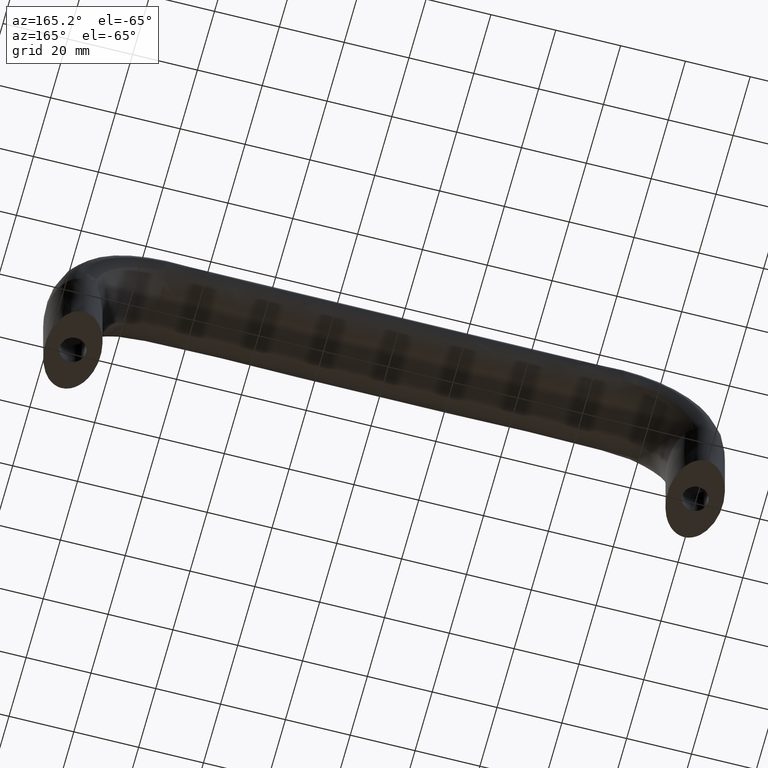
[diagram: clean part render]
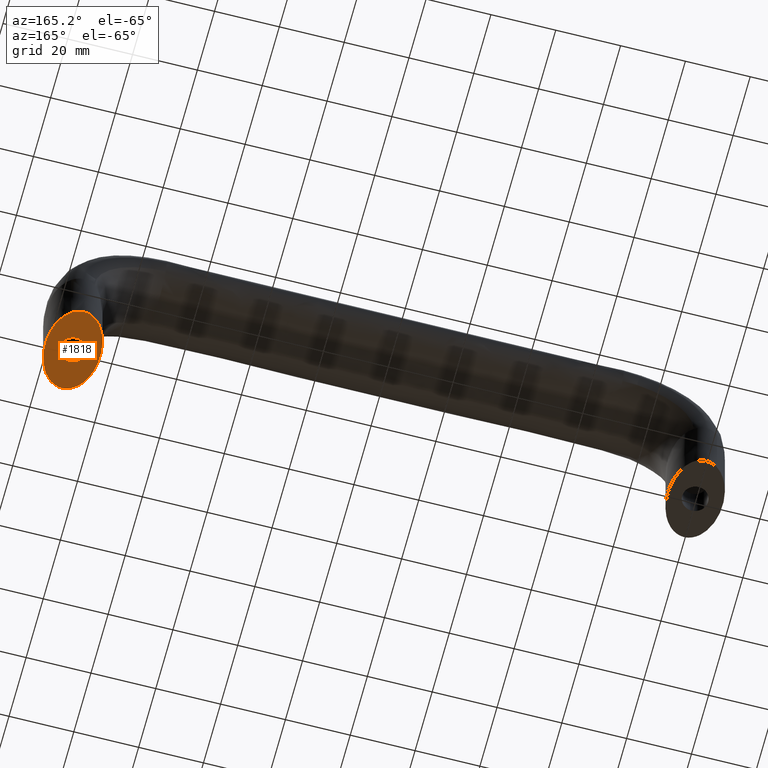
[diagram: same view with one face highlighted and labeled with its STEP entity id]
A machine part, auxiliary view. The second image highlights one B-rep face of the part: STEP entity #1818.
In plain terms, the highlighted face is a freeform B-spline surface patch.
Its self-contained STEP definition (entity closure, byte-faithful):
#271=CARTESIAN_POINT('',(192.472136939499110,-3.972038105351003,-3.407314E-016));
#272=VERTEX_POINT('',#271);
#278=CARTESIAN_POINT('',(188.0,0.0,0.0));
#279=VERTEX_POINT('',#278);
#280=CARTESIAN_POINT('',(192.472136939499140,-3.972038105351003,-3.407314E-016));
#281=CARTESIAN_POINT('',(192.236896479488930,-4.0,0.0));
#282=CARTESIAN_POINT('',(192.0,-4.0,0.0));
#283=CARTESIAN_POINT('',(188.000000000000090,-4.000000000000000,0.0));
#284=CARTESIAN_POINT('',(188.0,0.0,0.0));
#292=(BOUNDED_CURVE()B_SPLINE_CURVE(2,(#280,#281,#282,#283,#284),.UNSPECIFIED.,.F.,.U.)B_SPLINE_CURVE_WITH_KNOTS((3,2,3),(0.229562473441431,0.250000000000000,0.500000000000000),.UNSPECIFIED.)CURVE()GEOMETRIC_REPRESENTATION_ITEM()RATIONAL_B_SPLINE_CURVE((0.956026754042426,0.976055948246702,1.0,0.707106781186548,1.0))REPRESENTATION_ITEM(''));
#293=EDGE_CURVE('',#272,#279,#292,.T.);
#295=CARTESIAN_POINT('',(191.755805840828290,3.992539193624330,-3.330669E-016));
#296=VERTEX_POINT('',#295);
#297=CARTESIAN_POINT('',(188.0,0.0,0.0));
#298=CARTESIAN_POINT('',(188.000000000000060,3.762824265673356,0.0));
#299=CARTESIAN_POINT('',(191.755805840828320,3.992539193624331,-3.330669E-016));
#307=(BOUNDED_CURVE()B_SPLINE_CURVE(2,(#297,#298,#299),.UNSPECIFIED.,.F.,.U.)B_SPLINE_CURVE_WITH_KNOTS((3,3),(0.500000000000000,0.739332962152743),.UNSPECIFIED.)CURVE()GEOMETRIC_REPRESENTATION_ITEM()RATIONAL_B_SPLINE_CURVE((1.0,0.719603993387700,0.976072041481975))REPRESENTATION_ITEM(''));
#308=EDGE_CURVE('',#279,#296,#307,.T.);
#382=CARTESIAN_POINT('',(196.0,0.0,0.0));
#383=VERTEX_POINT('',#382);
#384=CARTESIAN_POINT('',(191.755805840828230,3.992539193624331,-3.330669E-016));
#385=CARTESIAN_POINT('',(191.877788945770480,4.000000000000001,0.0));
#386=CARTESIAN_POINT('',(192.0,4.0,0.0));
#387=CARTESIAN_POINT('',(195.999999999999970,4.000000000000000,0.0));
#388=CARTESIAN_POINT('',(196.0,0.0,0.0));
#396=(BOUNDED_CURVE()B_SPLINE_CURVE(2,(#384,#385,#386,#387,#388),.UNSPECIFIED.,.F.,.U.)B_SPLINE_CURVE_WITH_KNOTS((3,2,3),(0.739332962152743,0.750000000000000,1.0),.UNSPECIFIED.)CURVE()GEOMETRIC_REPRESENTATION_ITEM()RATIONAL_B_SPLINE_CURVE((0.976072041481976,0.987502787798848,1.0,0.707106781186548,1.0))REPRESENTATION_ITEM(''));
#397=EDGE_CURVE('',#296,#383,#396,.T.);
#399=CARTESIAN_POINT('',(196.0,0.0,0.0));
#400=CARTESIAN_POINT('',(196.000000000000030,-3.552698102234425,0.0));
#401=CARTESIAN_POINT('',(192.472136939499140,-3.972038105351003,-3.407314E-016));
#409=(BOUNDED_CURVE()B_SPLINE_CURVE(2,(#399,#400,#401),.UNSPECIFIED.,.F.,.U.)B_SPLINE_CURVE_WITH_KNOTS((3,3),(0.0,0.229562473441431),.UNSPECIFIED.)CURVE()GEOMETRIC_REPRESENTATION_ITEM()RATIONAL_B_SPLINE_CURVE((1.0,0.731050832939846,0.956026754042426))REPRESENTATION_ITEM(''));
#410=EDGE_CURVE('',#383,#272,#409,.T.);
#484=CARTESIAN_POINT('',(192.0,-13.0,3.009266E-032));
#485=VERTEX_POINT('',#484);
#493=CARTESIAN_POINT('',(195.619230261897600,11.762847667223760,-6.903102E-016));
#494=VERTEX_POINT('',#493);
#495=CARTESIAN_POINT('',(195.619230261897600,11.762847667223760,-6.903102E-016));
#496=CARTESIAN_POINT('',(196.956649166342200,10.803390672100020,-8.662975E-016));
#497=CARTESIAN_POINT('',(198.010265370546110,9.192189843254747,-9.982475E-016));
#498=CARTESIAN_POINT('',(199.205542172929910,7.364360158198659,-1.147939E-015));
#499=CARTESIAN_POINT('',(199.852858103848690,4.974720246373091,-1.218053E-015));
#500=CARTESIAN_POINT('',(200.499798650145290,2.586466109302399,-1.288128E-015));
#501=CARTESIAN_POINT('',(200.499912172600600,-0.000122424253729,-1.267905E-015));
#502=CARTESIAN_POINT('',(200.500025629223100,-2.585210970642345,-1.247694E-015));
#503=CARTESIAN_POINT('',(199.852919460393990,-4.974963469083877,-1.140213E-015));
#504=CARTESIAN_POINT('',(199.206188554527810,-7.363330127540749,-1.032794E-015));
#505=CARTESIAN_POINT('',(198.010378742658990,-9.192428436088280,-8.544174E-016));
#506=CARTESIAN_POINT('',(196.815262392143690,-11.020466033328500,-6.761440E-016));
#507=CARTESIAN_POINT('',(195.252800140997410,-12.010446515455740,-4.540278E-016));
#508=CARTESIAN_POINT('',(193.691322497607590,-12.999803147335889,-2.320516E-016));
#509=CARTESIAN_POINT('',(192.0,-13.0,3.009266E-032));
#510=B_SPLINE_CURVE_WITH_KNOTS('',2,(#495,#496,#497,#498,#499,#500,#501,#502,#503,#504,#505,#506,#507,#508,#509),.UNSPECIFIED.,.F.,.U.,(3,2,2,2,2,2,2,3),(0.139878520173565,0.250000000000000,0.375000000000000,0.500000000000000,0.625000000000000,0.750000000000000,0.875000000000000,1.0),.UNSPECIFIED.);
#511=EDGE_CURVE('',#494,#485,#510,.T.);
#608=CARTESIAN_POINT('',(192.0,13.0,-2.407412E-031));
#609=VERTEX_POINT('',#608);
#610=CARTESIAN_POINT('',(192.0,13.0,-2.407412E-031));
#611=CARTESIAN_POINT('',(193.690749000304010,12.999710136510931,-3.128182E-016));
#612=CARTESIAN_POINT('',(195.252670614756310,12.010240780789180,-6.183520E-016));
#613=CARTESIAN_POINT('',(195.438540826580090,11.892492952063680,-6.547108E-016));
#614=CARTESIAN_POINT('',(195.619230261897600,11.762847667223760,-6.903102E-016));
#615=B_SPLINE_CURVE_WITH_KNOTS('',2,(#610,#611,#612,#613,#614),.UNSPECIFIED.,.F.,.U.,(3,2,3),(0.0,0.125000000000000,0.139878520173565),.UNSPECIFIED.);
#616=EDGE_CURVE('',#609,#494,#615,.T.);
#618=CARTESIAN_POINT('',(192.0,-12.999999999999989,-5.672466E-030));
#619=CARTESIAN_POINT('',(190.309185756169510,-12.999801080675480,2.300467E-016));
#620=CARTESIAN_POINT('',(188.747190824896710,-12.010433922646721,4.425666E-016));
#621=CARTESIAN_POINT('',(187.185552516613600,-11.021292649521140,6.550380E-016));
#622=CARTESIAN_POINT('',(185.989592359914300,-9.192388155425114,8.177565E-016));
#623=CARTESIAN_POINT('',(184.794325751890910,-7.364544260449422,9.803806E-016));
#624=CARTESIAN_POINT('',(184.147023973654000,-4.974884620746123,1.068450E-015));
#625=CARTESIAN_POINT('',(183.500097571871410,-2.586610767382895,1.156469E-015));
#626=CARTESIAN_POINT('',(183.500000000000000,3.692386E-014,1.156482E-015));
#627=CARTESIAN_POINT('',(183.499902484711500,2.585110767285392,1.156496E-015));
#628=CARTESIAN_POINT('',(184.147023973654000,4.974884620746196,1.068450E-015));
#629=CARTESIAN_POINT('',(184.793770190730500,7.363272621768448,9.804562E-016));
#630=CARTESIAN_POINT('',(185.989592359914300,9.192388155425155,8.177565E-016));
#631=CARTESIAN_POINT('',(187.184721060538890,11.020442967725110,6.551512E-016));
#632=CARTESIAN_POINT('',(188.747190824896710,12.010433922646749,4.425666E-016));
#633=CARTESIAN_POINT('',(190.308675976730200,12.999801020700589,2.301160E-016));
#634=CARTESIAN_POINT('',(192.0,13.000000000000011,-2.407412E-031));
#635=B_SPLINE_CURVE_WITH_KNOTS('',2,(#618,#619,#620,#621,#622,#623,#624,#625,#626,#627,#628,#629,#630,#631,#632,#633,#634),.UNSPECIFIED.,.F.,.U.,(3,2,2,2,2,2,2,2,3),(0.0,0.125000000000000,0.250000000000000,0.375000000000000,0.500000000000000,0.625000000000000,0.750000000000000,0.875000000000000,1.0),.UNSPECIFIED.);
#636=EDGE_CURVE('',#485,#609,#635,.T.);
#1802=CARTESIAN_POINT('',(182.706396624615110,14.334696441850220,-2.407412E-031));
#1803=CARTESIAN_POINT('',(182.595633272215510,-14.262275140071219,-2.407412E-031));
#1804=CARTESIAN_POINT('',(201.403872400316200,14.262276357353031,-2.407412E-031));
#1805=CARTESIAN_POINT('',(201.293109047916600,-14.334695224568410,-2.407412E-031));
#1806=B_SPLINE_SURFACE_WITH_KNOTS('',1,1,((#1802,#1804),(#1803,#1805)),.UNSPECIFIED.,.F.,.F.,.U.,(2,2),(2,2),(0.0,28.597186088450339),(0.0,18.697616025888610),.UNSPECIFIED.);
#1807=ORIENTED_EDGE('',*,*,#616,.T.);
#1808=ORIENTED_EDGE('',*,*,#511,.T.);
#1809=ORIENTED_EDGE('',*,*,#636,.T.);
#1810=EDGE_LOOP('',(#1807,#1808,#1809));
#1811=FACE_OUTER_BOUND('',#1810,.T.);
#1812=ORIENTED_EDGE('',*,*,#308,.F.);
#1813=ORIENTED_EDGE('',*,*,#293,.F.);
#1814=ORIENTED_EDGE('',*,*,#410,.F.);
#1815=ORIENTED_EDGE('',*,*,#397,.F.);
#1816=EDGE_LOOP('',(#1812,#1813,#1814,#1815));
#1817=FACE_BOUND('',#1816,.T.);
#1818=ADVANCED_FACE('',(#1811,#1817),#1806,.F.);